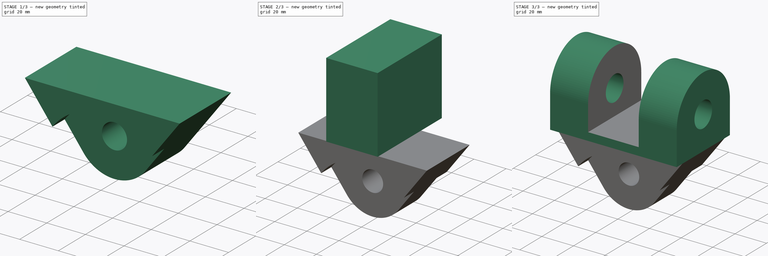
[diagram: build sequence overview — one tinted view per stage of 3, left to right]
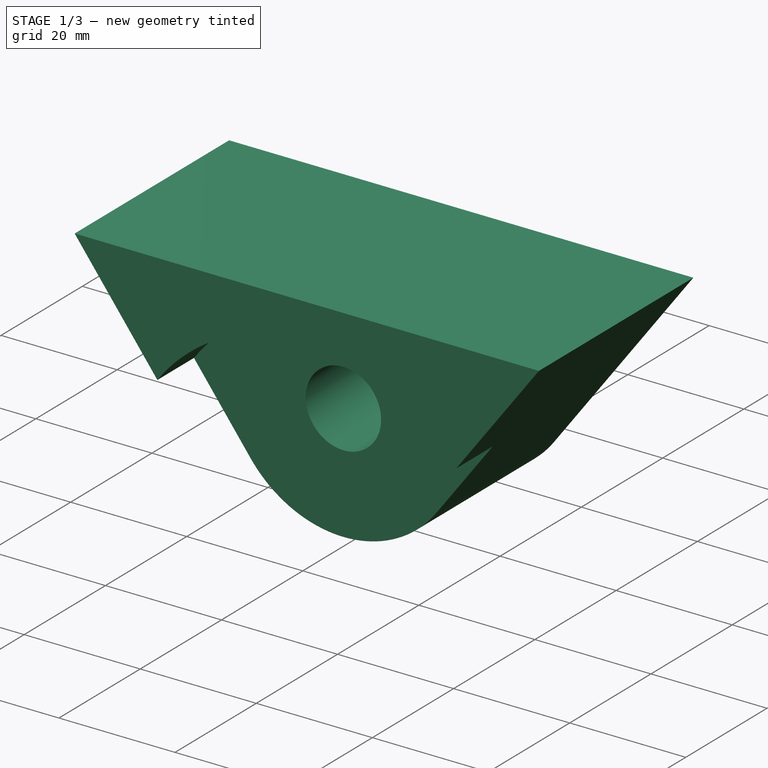
[diagram: stage 1 of 3 — iso view after this stage's code; geometry added in this stage tinted green]
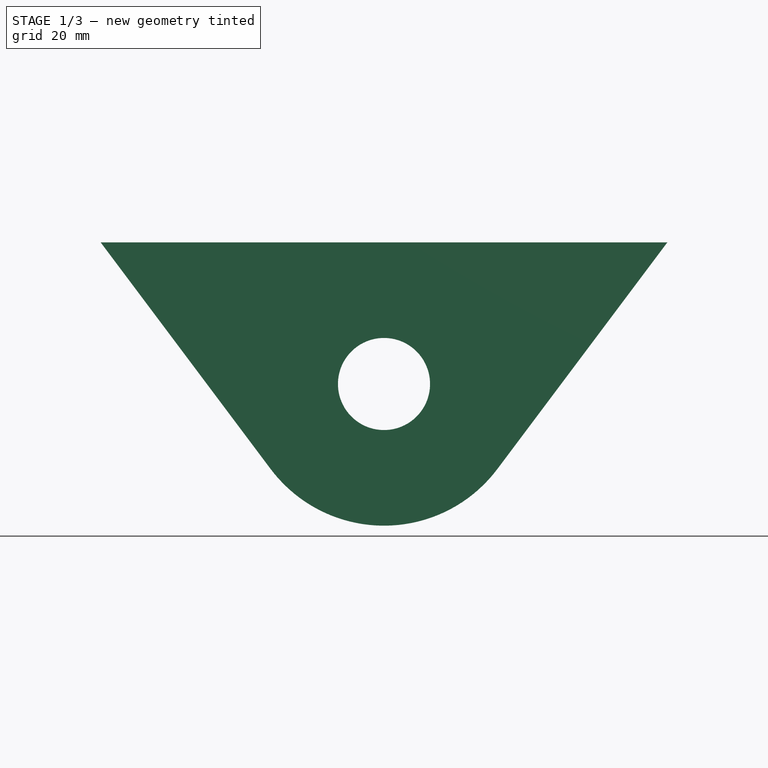
[diagram: stage 1 of 3 — front view after this stage's code; geometry added in this stage tinted green]
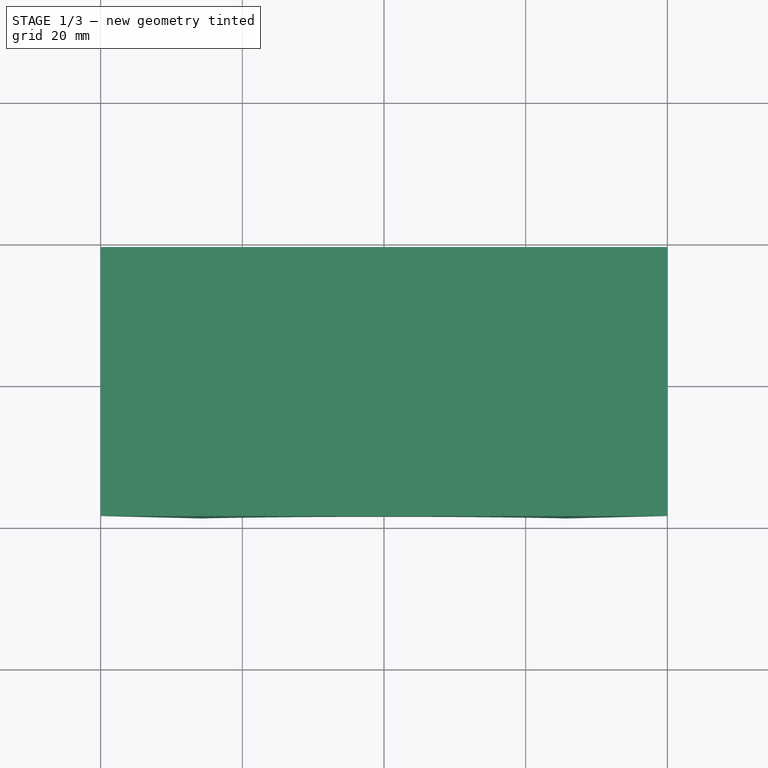
[diagram: stage 1 of 3 — top view after this stage's code; geometry added in this stage tinted green]
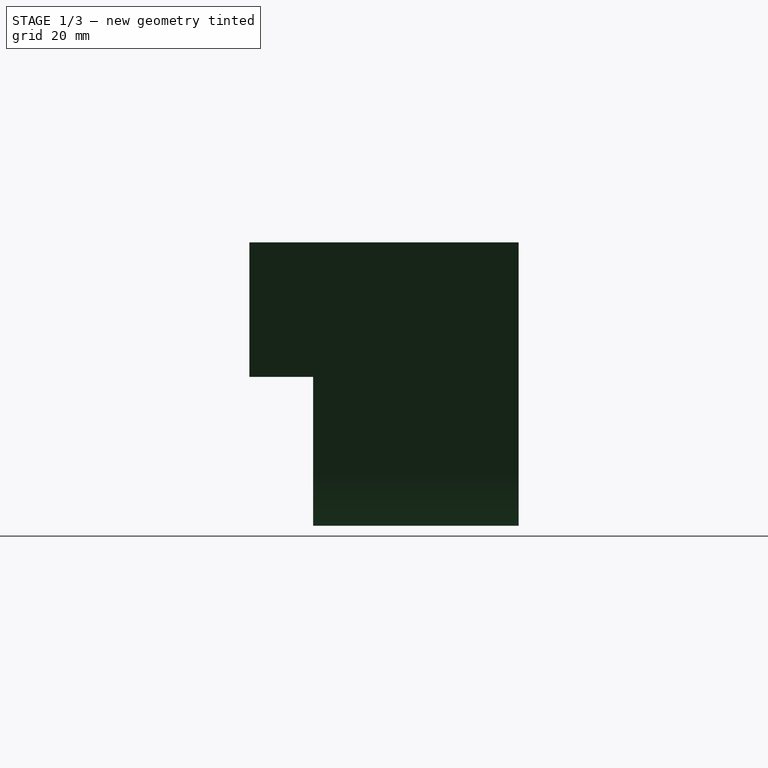
[diagram: stage 1 of 3 — right view after this stage's code; geometry added in this stage tinted green]
FCSTD DOCUMENT  (FreeCAD 0.16R)
Label: ejer14
License: All rights reserved
LicenseURL: http://en.wikipedia.org/wiki/All_rights_reserved
objects: Sketcher::SketchObject×5, PartDesign::Pad×3, PartDesign::Pocket×2, Part::Cut×1
note: 16 computed .brp shape members not serialized (recipe doc carries the construction recipe); baked Part::Feature solids carry a one-line shape summary decoded from their .brp

FEATURE [Sketcher::SketchObject] Sketch002
  Placement = pos=(0,0,0) rot=(-1,0,0;4.71239rad)
  sketch-geometry (5):
    g0: Circle CenterX=0 CenterY=18 CenterZ=0 NormalX=0 NormalY=0 NormalZ=1 Radius=6.5
    g1: LineSegment StartX=-40 StartY=38 StartZ=0 EndX=40 EndY=38 EndZ=0
    g2: LineSegment StartX=-40 StartY=38 StartZ=0 EndX=-16 EndY=6.00004 EndZ=0
    g3: LineSegment StartX=40 StartY=38 StartZ=0 EndX=16 EndY=6.00004 EndZ=0
    g4: ArcOfCircle CenterX=0 CenterY=18 CenterZ=0 NormalX=0 NormalY=0 NormalZ=1 Radius=20 StartAngle=3.78509 EndAngle=5.63969
  constraints (15):
    c: PointOnObject(g0,g-2)
    c: Radius(g0) = 6.5
    c: DistanceY(g-1,g0) = 18
    c: Horizontal(g1)
    c: Coincident(g2,g1)
    c: Coincident(g3,g1)
    c: DistanceX(g1,g1) = 80
    c: Symmetric(g1,g1,g-2)
    c: DistanceY(g-1,g1) = 38
    c: Coincident(g4,g0)
    c: Coincident(g4,g3)
    c: Coincident(g4,g2)
    c: Tangent(g4,g2)
    c: Tangent(g4,g3)
    c: Radius(g4) = 20
FEATURE [PartDesign::Pad] Pad002
  Length = 38
  Length2 = 100
  Midplane = true
  Placement = pos=(0,0,0) rot=(-1,0,0;4.71239rad)
  Sketch = -> Sketch002
  Type = 0
FEATURE [Sketcher::SketchObject] Sketch003
  Placement = pos=(0,-19,0) rot=(1,0,0;1.5708rad)
  Support = -> Pad002 [Face7]
  sketch-geometry (2):
    g0: ArcOfCircle CenterX=0 CenterY=0 CenterZ=0 NormalX=0 NormalY=0 NormalZ=1 Radius=32 StartAngle=5.93452 EndAngle=9.77345
    g1: LineSegment StartX=-30.0745 StartY=-10.9327 StartZ=0 EndX=30.0745 EndY=-10.9327 EndZ=0
  constraints (5):
    c: Coincident(g0,g-1)
    c: Coincident(g1,g0)
    c: Coincident(g1,g0)
    c: Horizontal(g1)
    c: Radius(g0) = 32
FEATURE [PartDesign::Pocket] Pocket
  Length = 9
  Placement = pos=(0,0,0) rot=(-1,0,0;4.71239rad)
  Sketch = -> Sketch003
  Type = 0
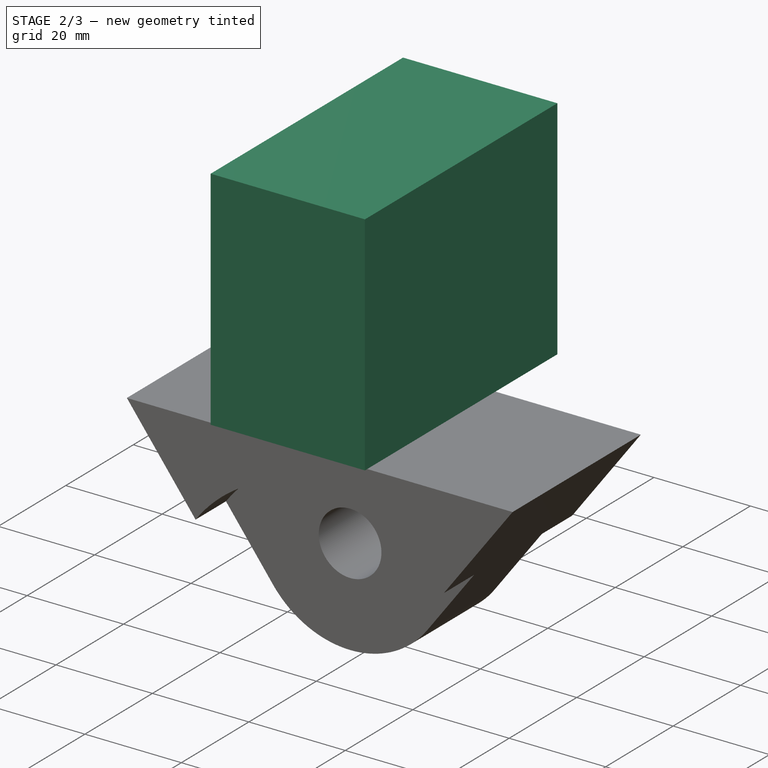
[diagram: stage 2 of 3 — iso view after this stage's code; geometry added in this stage tinted green]
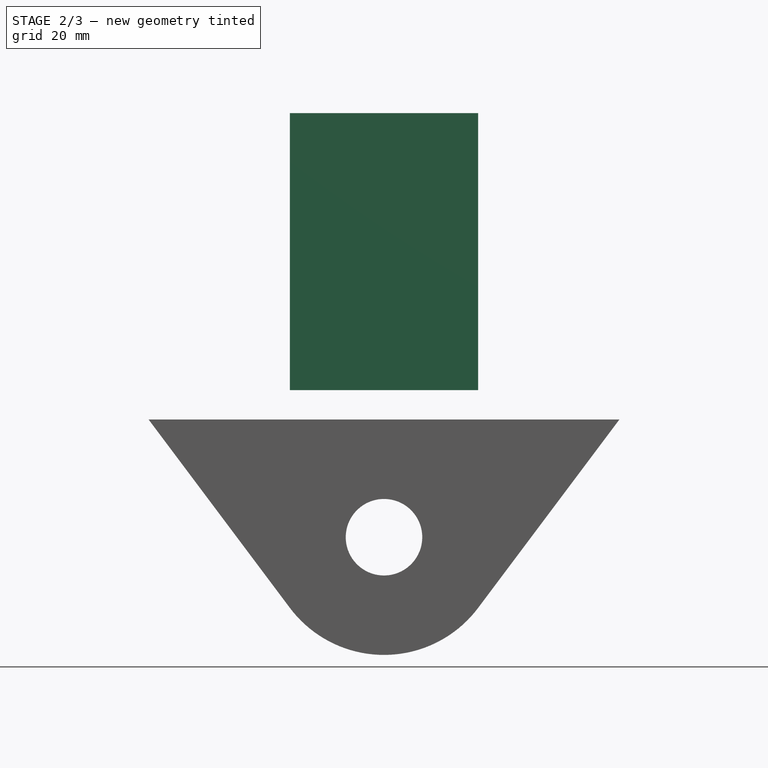
[diagram: stage 2 of 3 — front view after this stage's code; geometry added in this stage tinted green]
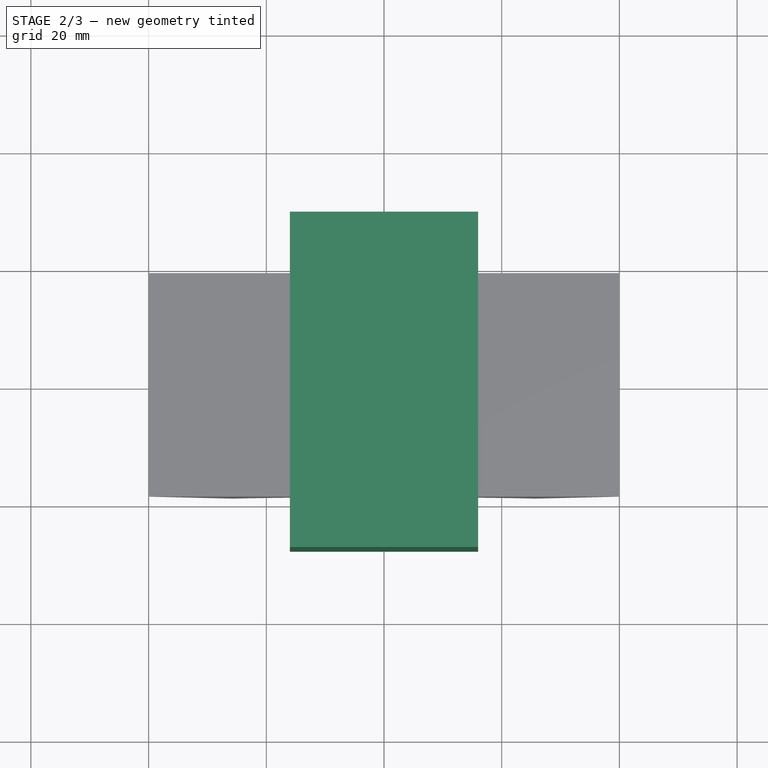
[diagram: stage 2 of 3 — top view after this stage's code; geometry added in this stage tinted green]
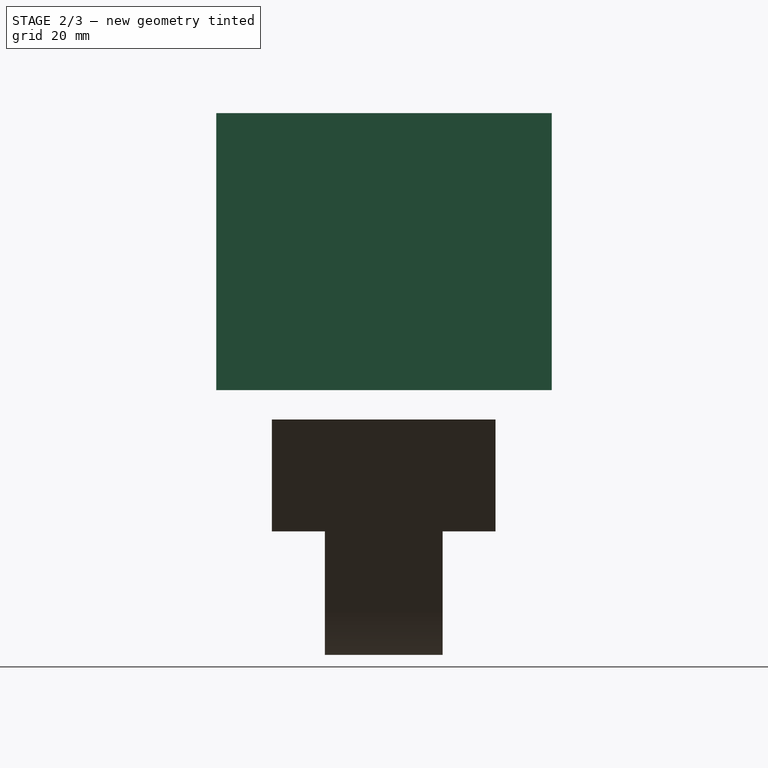
[diagram: stage 2 of 3 — right view after this stage's code; geometry added in this stage tinted green]
FEATURE [Sketcher::SketchObject] Sketch001
  Placement = pos=(0,0,0) rot=(0.57735,0.57735,0.57735;2.0944rad)
  sketch-geometry (4):
    g0: LineSegment StartX=-28.4532 StartY=90.0693 StartZ=0 EndX=28.5414 EndY=90.0693 EndZ=0
    g1: LineSegment StartX=28.5414 StartY=90.0693 StartZ=0 EndX=28.5414 EndY=43 EndZ=0
    g2: LineSegment StartX=28.5414 StartY=43 StartZ=0 EndX=-28.4532 EndY=43 EndZ=0
    g3: LineSegment StartX=-28.4532 StartY=43 StartZ=0 EndX=-28.4532 EndY=90.0693 EndZ=0
  constraints (9):
    c: Coincident(g0,g1)
    c: Coincident(g1,g2)
    c: Coincident(g2,g3)
    c: Coincident(g3,g0)
    c: Horizontal(g0)
    c: Horizontal(g2)
    c: Vertical(g1)
    c: Vertical(g3)
    c: DistanceY(g-1,g1) = 43
FEATURE [PartDesign::Pad] Pad001
  Length = 32
  Length2 = 100
  Midplane = true
  Placement = pos=(0,0,0) rot=(0.57735,0.57735,0.57735;2.0944rad)
  Sketch = -> Sketch001
  Type = 0
FEATURE [Sketcher::SketchObject] Sketch004
  Placement = pos=(0,19,0) rot=(-1,0,0;1.5708rad)
  Support = -> Pocket [Face4]
  sketch-geometry (2):
    g0: ArcOfCircle CenterX=0 CenterY=0 CenterZ=0 NormalX=0 NormalY=0 NormalZ=1 Radius=32 StartAngle=2.75229 EndAngle=6.50306
    g1: LineSegment StartX=31.2296 StartY=6.97938 StartZ=0 EndX=-29.6056 EndY=12.1453 EndZ=0
  constraints (4):
    c: Coincident(g0,g-1)
    c: Coincident(g1,g0)
    c: Coincident(g1,g0)
    c: Radius(g0) = 32
FEATURE [PartDesign::Pocket] Pocket001
  Length = 9
  Placement = pos=(0,0,0) rot=(-1,0,0;4.71239rad)
  Sketch = -> Sketch004
  Type = 0
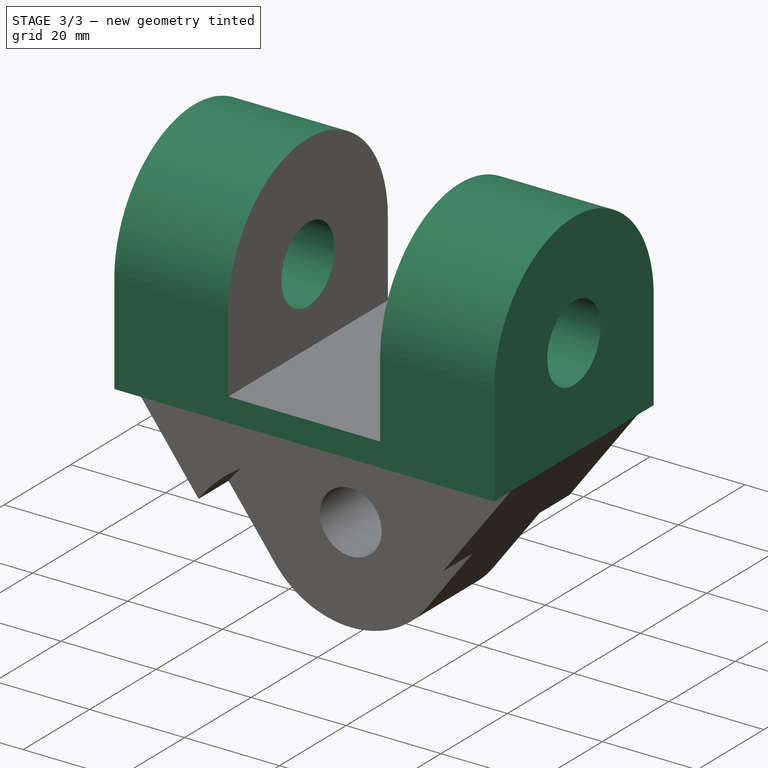
[diagram: stage 3 of 3 — iso view after this stage's code; geometry added in this stage tinted green]
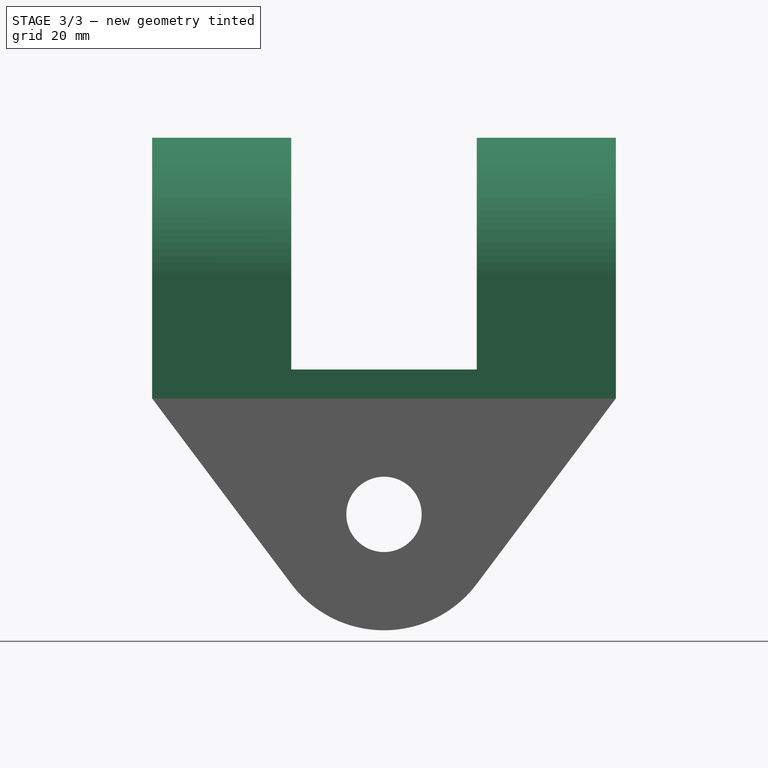
[diagram: stage 3 of 3 — front view after this stage's code; geometry added in this stage tinted green]
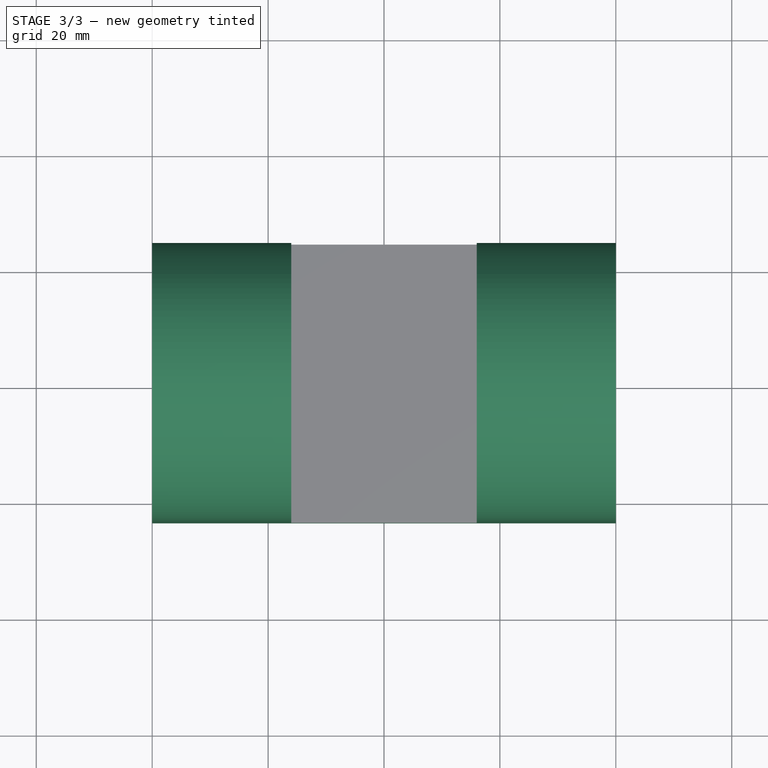
[diagram: stage 3 of 3 — top view after this stage's code; geometry added in this stage tinted green]
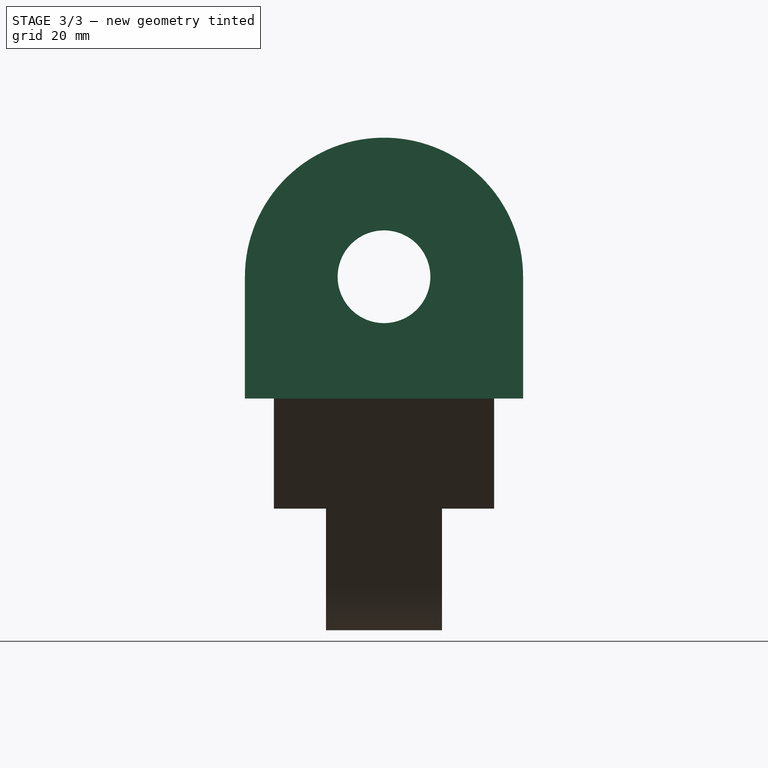
[diagram: stage 3 of 3 — right view after this stage's code; geometry added in this stage tinted green]
FEATURE [Sketcher::SketchObject] Sketch
  Placement = pos=(0,0,0) rot=(0.57735,0.57735,0.57735;2.0944rad)
  sketch-geometry (5):
    g0: Circle CenterX=0 CenterY=59 CenterZ=0 NormalX=0 NormalY=0 NormalZ=1 Radius=8
    g1: LineSegment StartX=-24 StartY=38 StartZ=0 EndX=24 EndY=38 EndZ=0
    g2: LineSegment StartX=-24 StartY=38 StartZ=0 EndX=-24 EndY=59 EndZ=0
    g3: LineSegment StartX=24 StartY=38 StartZ=0 EndX=24 EndY=59 EndZ=0
    g4: ArcOfCircle CenterX=0 CenterY=59 CenterZ=0 NormalX=0 NormalY=0 NormalZ=1 Radius=24 StartAngle=1.77648e-06 EndAngle=3.14159
  constraints (15):
    c: DistanceY(g-1,g0) = 59
    c: Radius(g0) = 8
    c: PointOnObject(g0,g-2)
    c: Horizontal(g1)
    c: DistanceX(g1,g1) = 48
    c: DistanceY(g-1,g1) = 38
    c: Symmetric(g1,g1,g-2)
    c: Coincident(g2,g1)
    c: Coincident(g3,g1)
    c: Coincident(g4,g0)
    c: Coincident(g4,g2)
    c: Coincident(g4,g3)
    c: Vertical(g3)
    c: Tangent(g2,g4)
    c: Tangent(g3,g4)
FEATURE [PartDesign::Pad] Pad
  Length = 80
  Length2 = 100
  Midplane = true
  Placement = pos=(0,0,0) rot=(0.57735,0.57735,0.57735;2.0944rad)
  Sketch = -> Sketch
  Type = 0
FEATURE [Part::Cut] Cut
  Base = -> Pad
  Tool = -> Pad001
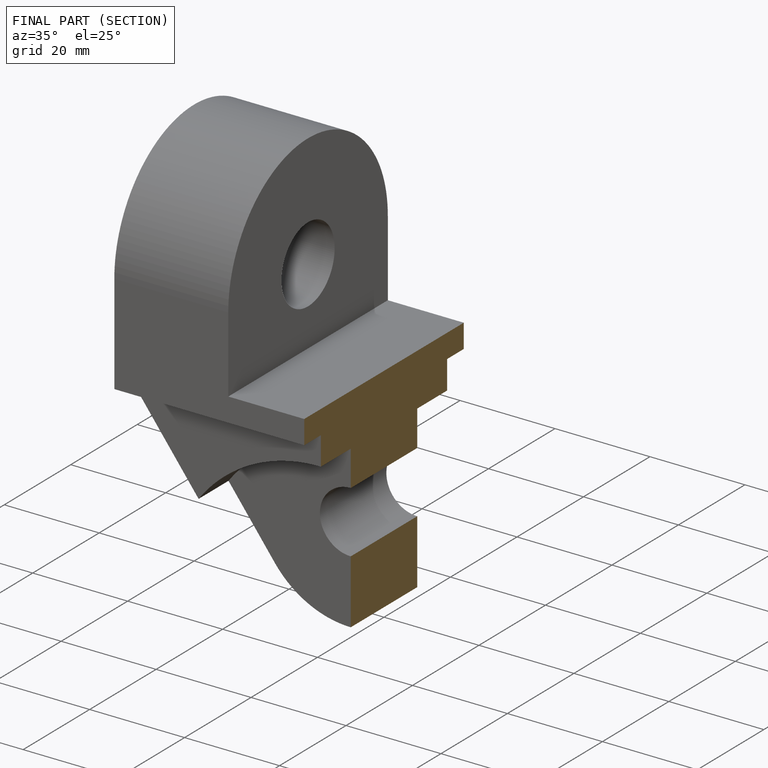
[diagram: finished part — half-section view (interior)]
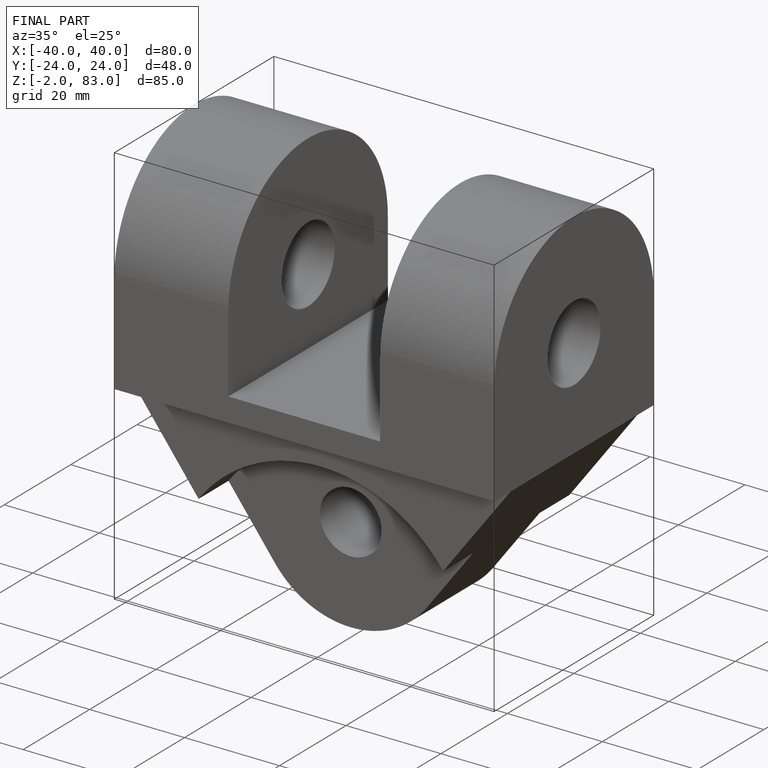
[diagram: finished part — iso view with bounding-box wireframe]
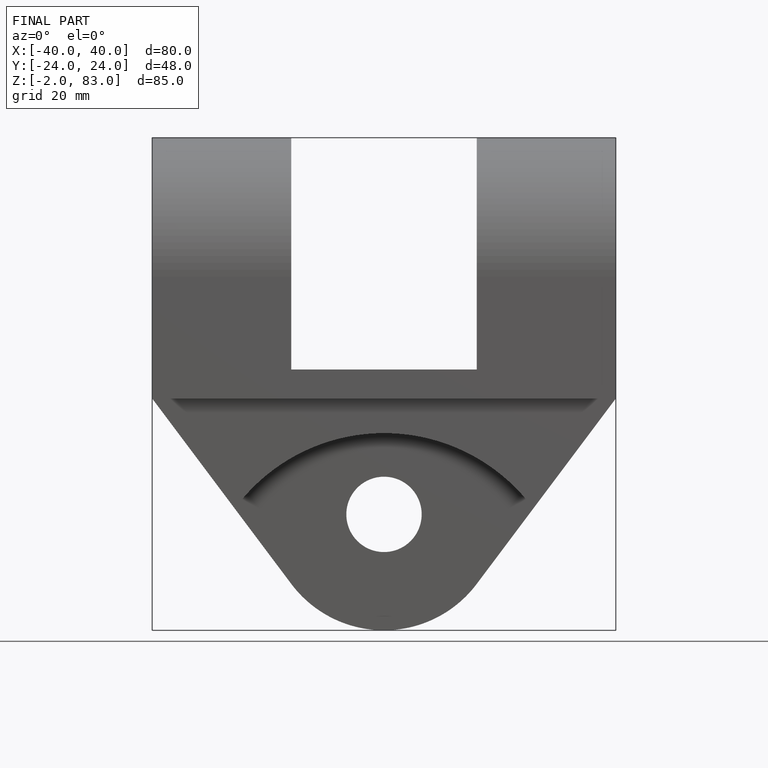
[diagram: finished part — front view with bounding-box wireframe]
